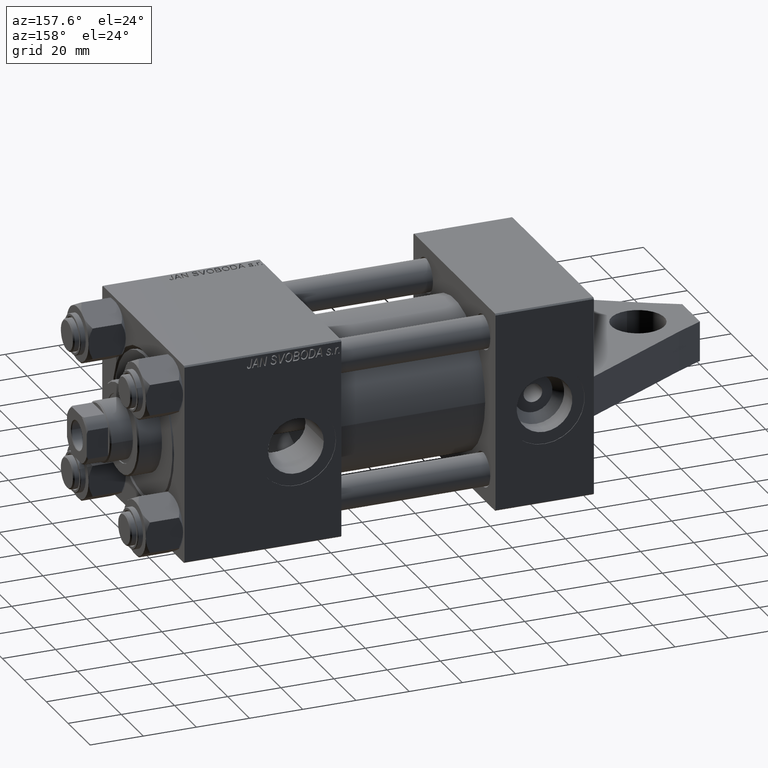
[diagram: clean part render]
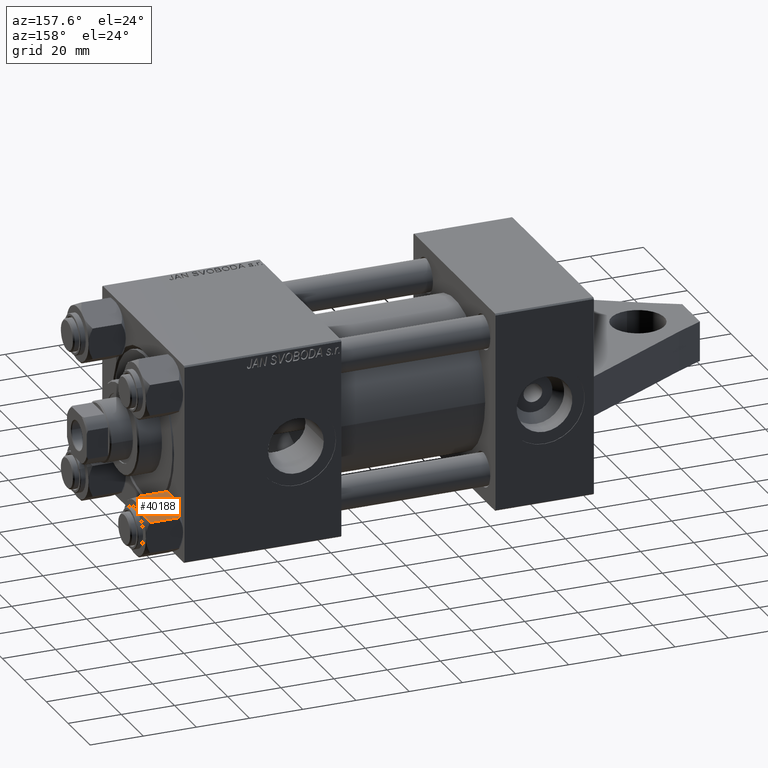
[diagram: same view with one face highlighted and labeled with its STEP entity id]
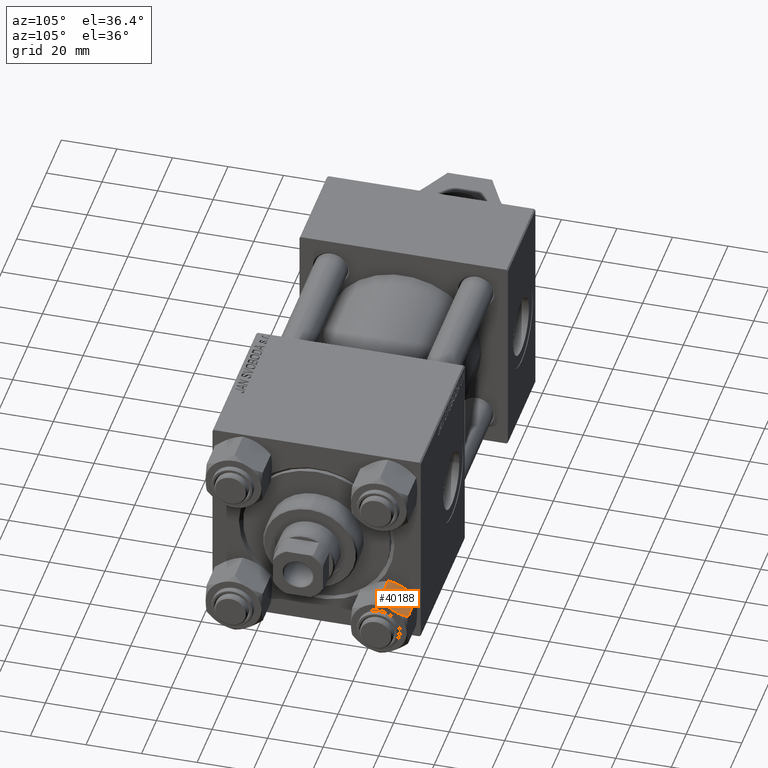
[diagram: same view with one face highlighted and labeled with its STEP entity id]
A machine part, auxiliary view. The second image highlights one B-rep face of the part: STEP entity #40188.
A second angle (auxiliary view) of the same face is appended — the face is thin or edge-on in the first view.
In plain terms, the highlighted planar face has unit normal (0, -0.5, -0.866).
Its self-contained STEP definition (entity closure, byte-faithful):
#633 = CARTESIAN_POINT ( 'NONE',  ( 5.810000000000000497, 10.06321519197518022, -12.44321519197518278 ) ) ;
#873 = EDGE_CURVE ( 'NONE', #41579, #23378, #41079, .T. ) ;
#991 = CARTESIAN_POINT ( 'NONE',  ( 3.958929922320420403, 10.06321519197517667, -0.7421398502354010773 ) ) ;
#2568 = EDGE_CURVE ( 'NONE', #31392, #43675, #12628, .T. ) ;
#4106 = B_SPLINE_CURVE_WITH_KNOTS ( 'NONE', 3,
 ( #34551, #13815, #6610, #38498, #38265, #41997, #27343, #20359, #28009 ),
 .UNSPECIFIED., .F., .F.,
 ( 4, 2, 1, 2, 4 ),
 ( 0.02074012592819901579, 0.02149589804477577970, 0.02225167016135254361, 0.02376321439450607489, 0.02678630286081313053 ),
 .UNSPECIFIED. ) ;
#5940 = DIRECTION ( 'NONE',  ( -0.000000000000000000, -0.000000000000000000, 1.000000000000000000 ) ) ;
#6117 = VECTOR ( 'NONE', #35184, 1000.000000000000000 ) ;
#6610 = CARTESIAN_POINT ( 'NONE',  ( -0.5112014849988877341, 10.06321519197518022, -0.009803979428914416996 ) ) ;
#6726 = PLANE ( 'NONE',  #43267 ) ;
#7289 = CARTESIAN_POINT ( 'NONE',  ( 5.359707691559674636, 10.06321519197518199, -1.331638653804653627 ) ) ;
#7421 = FACE_OUTER_BOUND ( 'NONE', #12762, .T. ) ;
#7517 = CARTESIAN_POINT ( 'NONE',  ( 3.474497094393250940, 10.06321519197517844, -0.5726960901042760232 ) ) ;
#7653 = CARTESIAN_POINT ( 'NONE',  ( -2.013954290287967019, 10.06321519197518022, -13.84298883202399821 ) ) ;
#8568 = CARTESIAN_POINT ( 'NONE',  ( -5.359707691559671083, 10.06321519197517844, -12.66836134619534526 ) ) ;
#12628 = B_SPLINE_CURVE_WITH_KNOTS ( 'NONE', 3,
 ( #17616, #21098, #18083, #35300, #31808, #28318, #29011, #46014, #24602 ),
 .UNSPECIFIED., .F., .F.,
 ( 4, 2, 1, 2, 4 ),
 ( 0.02074012592819901232, 0.02149589804477577970, 0.02225167016135254361, 0.02376321439450607489, 0.02678630286081313400 ),
 .UNSPECIFIED. ) ;
#12762 = EDGE_LOOP ( 'NONE', ( #45596, #33660, #39499, #30629, #43378, #24539 ) ) ;
#13015 = EDGE_CURVE ( 'NONE', #43675, #41579, #16876, .T. ) ;
#13601 = CARTESIAN_POINT ( 'NONE',  ( 5.810000000000000497, 10.06321519197518022, -14.00000000000000000 ) ) ;
#13815 = CARTESIAN_POINT ( 'NONE',  ( -0.2543996698847477700, 10.06321519197518199, 3.388131789017202589E-17 ) ) ;
#14020 = CARTESIAN_POINT ( 'NONE',  ( 0.000000000000000000, 10.06321519197518022, -14.00000000000000000 ) ) ;
#15060 = B_SPLINE_CURVE_WITH_KNOTS ( 'NONE', 3,
 ( #36271, #8568, #29520, #19300, #29762, #7653, #36052, #22311 ),
 .UNSPECIFIED., .F., .F.,
 ( 4, 2, 2, 4 ),
 ( 0.01467889604968878464, 0.01619420351931634069, 0.01770951098894389675, 0.02074012592819901232 ),
 .UNSPECIFIED. ) ;
#15190 = CARTESIAN_POINT ( 'NONE',  ( 1.020132157807626339, 10.06321519197518199, -1.829591166069289225E-16 ) ) ;
#16876 = LINE ( 'NONE', #13601, #33298 ) ;
#17616 = CARTESIAN_POINT ( 'NONE',  ( 0.000000000000000000, 10.06321519197518022, -14.00000000000000000 ) ) ;
#17791 = VERTEX_POINT ( 'NONE', #36733 ) ;
#18083 = CARTESIAN_POINT ( 'NONE',  ( 0.5112014849988876231, 10.06321519197518022, -13.99019602057108536 ) ) ;
#18461 = CARTESIAN_POINT ( 'NONE',  ( 5.810000000000000497, 10.06321519197518022, -1.556784808024817890 ) ) ;
#18462 = CARTESIAN_POINT ( 'NONE',  ( 4.900668367960795635, 10.06321519197518022, -1.121556683709774793 ) ) ;
#19300 = CARTESIAN_POINT ( 'NONE',  ( -3.958929922320416850, 10.06321519197517844, -13.25786014976459803 ) ) ;
#20321 = CARTESIAN_POINT ( 'NONE',  ( -5.809999999999997833, 10.06321519197518022, -14.00000000000000000 ) ) ;
#20359 = CARTESIAN_POINT ( 'NONE',  ( -4.908816193182378385, 10.06321519197518199, -1.106192904616008388 ) ) ;
#20770 = LINE ( 'NONE', #20321, #6117 ) ;
#21098 = CARTESIAN_POINT ( 'NONE',  ( 0.2543996698847478255, 10.06321519197517844, -14.00000000000000000 ) ) ;
#21169 = CARTESIAN_POINT ( 'NONE',  ( -5.809999999999997833, 10.06321519197518022, -12.44321519197518455 ) ) ;
#21493 = CARTESIAN_POINT ( 'NONE',  ( 2.013954290287964799, 10.06321519197518022, -0.1570111679759990109 ) ) ;
#21623 = DIRECTION ( 'NONE',  ( 0.000000000000000000, -1.000000000000000000, 0.000000000000000000 ) ) ;
#22311 = CARTESIAN_POINT ( 'NONE',  ( 0.000000000000000000, 10.06321519197518022, -14.00000000000000000 ) ) ;
#23378 = VERTEX_POINT ( 'NONE', #32767 ) ;
#24539 = ORIENTED_EDGE ( 'NONE', *, *, #2568, .F. ) ;
#24602 = CARTESIAN_POINT ( 'NONE',  ( 5.810000000000000497, 10.06321519197518022, -12.44321519197518278 ) ) ;
#27343 = CARTESIAN_POINT ( 'NONE',  ( -3.960942496020599002, 10.06321519197518199, -0.7115728323610420736 ) ) ;
#28009 = CARTESIAN_POINT ( 'NONE',  ( -5.809999999999997833, 10.06321519197518022, -1.556784808024815447 ) ) ;
#28136 = CARTESIAN_POINT ( 'NONE',  ( -5.809999999999997833, 10.06321519197518022, -14.00000000000000000 ) ) ;
#28318 = CARTESIAN_POINT ( 'NONE',  ( 2.508586450168038162, 10.06321519197517844, -13.70242473679676642 ) ) ;
#29011 = CARTESIAN_POINT ( 'NONE',  ( 3.960942496020600778, 10.06321519197518022, -13.28842716763895737 ) ) ;
#29520 = CARTESIAN_POINT ( 'NONE',  ( -4.900668367960792082, 10.06321519197518199, -12.87844331629022676 ) ) ;
#29762 = CARTESIAN_POINT ( 'NONE',  ( -3.474497094393252716, 10.06321519197518022, -13.42730390989572342 ) ) ;
#30629 = ORIENTED_EDGE ( 'NONE', *, *, #873, .F. ) ;
#31392 = VERTEX_POINT ( 'NONE', #14020 ) ;
#31808 = CARTESIAN_POINT ( 'NONE',  ( 1.772424303831127146, 10.06321519197517667, -13.86611290782775896 ) ) ;
#32767 = CARTESIAN_POINT ( 'NONE',  ( 0.000000000000000000, 10.06321519197518022, 0.000000000000000000 ) ) ;
#33298 = VECTOR ( 'NONE', #5940, 1000.000000000000000 ) ;
#33660 = ORIENTED_EDGE ( 'NONE', *, *, #40662, .T. ) ;
#34551 = CARTESIAN_POINT ( 'NONE',  ( 0.000000000000000000, 10.06321519197518022, 0.000000000000000000 ) ) ;
#35184 = DIRECTION ( 'NONE',  ( -0.000000000000000000, -0.000000000000000000, 1.000000000000000000 ) ) ;
#35300 = CARTESIAN_POINT ( 'NONE',  ( 1.018274738099083976, 10.06321519197517844, -13.95177257919928948 ) ) ;
#35818 = DIRECTION ( 'NONE',  ( 0.000000000000000000, -0.000000000000000000, -1.000000000000000000 ) ) ;
#36052 = CARTESIAN_POINT ( 'NONE',  ( -1.020132157807625006, 10.06321519197517844, -13.99999999999999822 ) ) ;
#36271 = CARTESIAN_POINT ( 'NONE',  ( -5.809999999999997833, 10.06321519197518022, -12.44321519197518455 ) ) ;
#36733 = CARTESIAN_POINT ( 'NONE',  ( -5.809999999999997833, 10.06321519197518022, -1.556784808024815447 ) ) ;
#38265 = CARTESIAN_POINT ( 'NONE',  ( -1.772424303831124259, 10.06321519197518199, -0.1338870921722387641 ) ) ;
#38266 = VERTEX_POINT ( 'NONE', #21169 ) ;
#38498 = CARTESIAN_POINT ( 'NONE',  ( -1.018274738099083976, 10.06321519197518199, -0.04822742080070995668 ) ) ;
#39499 = ORIENTED_EDGE ( 'NONE', *, *, #39505, .F. ) ;
#39505 = EDGE_CURVE ( 'NONE', #23378, #17791, #4106, .T. ) ;
#39856 = CARTESIAN_POINT ( 'NONE',  ( 5.810000000000000497, 10.06321519197518022, -1.556784808024817890 ) ) ;
#40188 = ADVANCED_FACE ( 'NONE', ( #7421 ), #6726, .F. ) ;
#40662 = EDGE_CURVE ( 'NONE', #38266, #17791, #20770, .T. ) ;
#41079 = B_SPLINE_CURVE_WITH_KNOTS ( 'NONE', 3,
 ( #39856, #7289, #18462, #991, #7517, #21493, #15190, #42679 ),
 .UNSPECIFIED., .F., .F.,
 ( 4, 2, 2, 4 ),
 ( 0.01467889604968878811, 0.01619420351931634416, 0.01770951098894390022, 0.02074012592819901579 ),
 .UNSPECIFIED. ) ;
#41579 = VERTEX_POINT ( 'NONE', #18461 ) ;
#41997 = CARTESIAN_POINT ( 'NONE',  ( -2.508586450168036386, 10.06321519197518022, -0.2975752632032304112 ) ) ;
#42573 = EDGE_CURVE ( 'NONE', #38266, #31392, #15060, .T. ) ;
#42679 = CARTESIAN_POINT ( 'NONE',  ( 0.000000000000000000, 10.06321519197518022, 0.000000000000000000 ) ) ;
#43267 = AXIS2_PLACEMENT_3D ( 'NONE', #28136, #21623, #35818 ) ;
#43378 = ORIENTED_EDGE ( 'NONE', *, *, #13015, .F. ) ;
#43675 = VERTEX_POINT ( 'NONE', #633 ) ;
#45596 = ORIENTED_EDGE ( 'NONE', *, *, #42573, .F. ) ;
#46014 = CARTESIAN_POINT ( 'NONE',  ( 4.908816193182378385, 10.06321519197517667, -12.89380709538398939 ) ) ;